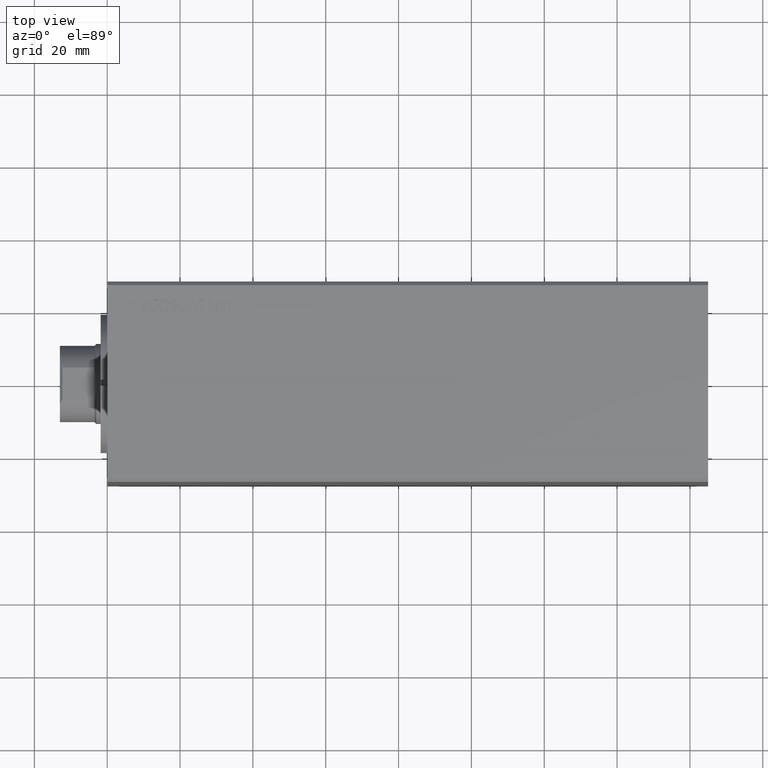
[diagram: clean part render]
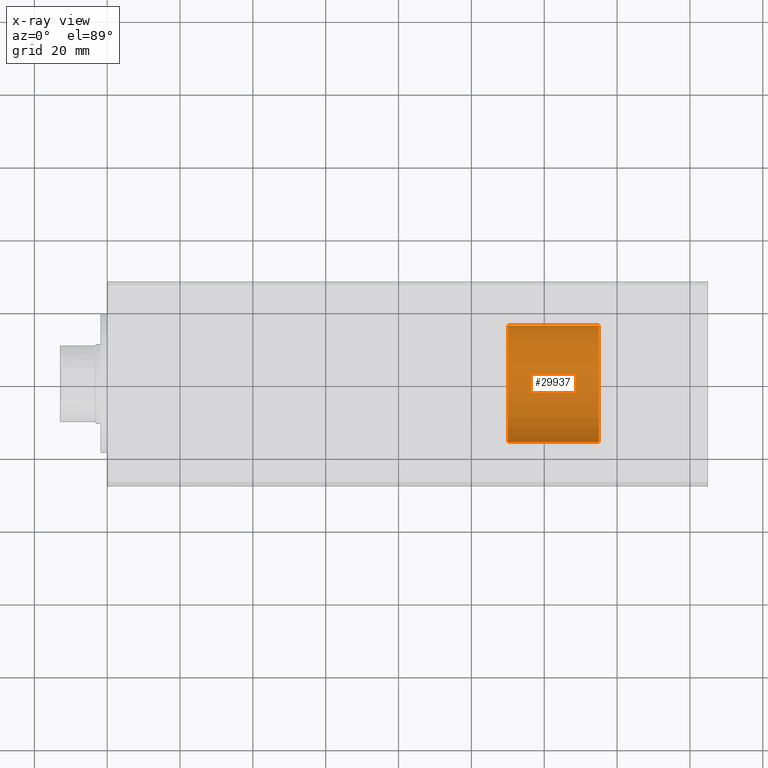
[diagram: x-ray — body ghosted, one internal face saturated and labeled with its STEP entity id]
A machine part, top view, then the same camera in x-ray: the body is ghosted and one INTERNAL B-rep face — a face not visible from any outside direction — is saturated and labeled: STEP entity #29937.
In plain terms, the highlighted cylindrical surface (partial cylindrical patch) has radius 16 mm, axis along (-1, 0, 0).
Its self-contained STEP definition (entity closure, byte-faithful):
#1081 = EDGE_CURVE ( 'NONE', #31718, #42353, #2463, .T. ) ;
#1941 = DIRECTION ( 'NONE',  ( 0.000000000000000000, -1.000000000000000000, 0.000000000000000000 ) ) ;
#1985 = EDGE_LOOP ( 'NONE', ( #39531, #18424, #27816, #24268 ) ) ;
#2463 = LINE ( 'NONE', #6469, #13023 ) ;
#2569 = VERTEX_POINT ( 'NONE', #31685 ) ;
#2777 = VECTOR ( 'NONE', #35470, 1000.000000000000000 ) ;
#3132 = DIRECTION ( 'NONE',  ( -0.000000000000000000, -1.817376075630682537E-16, 1.000000000000000000 ) ) ;
#4275 = EDGE_CURVE ( 'NONE', #42353, #2569, #4758, .T. ) ;
#4652 = CIRCLE ( 'NONE', #38190, 16.00000000000000000 ) ;
#4729 = CARTESIAN_POINT ( 'NONE',  ( 0.000000000000000000, -4.543440189076707229E-15, 25.00000000000000711 ) ) ;
#4758 = CIRCLE ( 'NONE', #10468, 15.99999999999999645 ) ;
#6174 = FACE_OUTER_BOUND ( 'NONE', #1985, .T. ) ;
#6469 = CARTESIAN_POINT ( 'NONE',  ( 0.000000000000000000, -16.00000000000002487, 148.0000000000000000 ) ) ;
#10468 = AXIS2_PLACEMENT_3D ( 'NONE', #4729, #35322, #31320 ) ;
#13023 = VECTOR ( 'NONE', #3132, 1000.000000000000000 ) ;
#14689 = LINE ( 'NONE', #21421, #2777 ) ;
#14921 = CARTESIAN_POINT ( 'NONE',  ( 1.959434878635765526E-15, 16.00000000000000000, 2.907801721009092059E-15 ) ) ;
#18259 = CARTESIAN_POINT ( 'NONE',  ( 0.000000000000000000, -16.00000000000000000, -2.907801721009092059E-15 ) ) ;
#18424 = ORIENTED_EDGE ( 'NONE', *, *, #18918, .T. ) ;
#18918 = EDGE_CURVE ( 'NONE', #20486, #2569, #14689, .T. ) ;
#19801 = CYLINDRICAL_SURFACE ( 'NONE', #31516, 15.99999999999999645 ) ;
#20486 = VERTEX_POINT ( 'NONE', #14921 ) ;
#21421 = CARTESIAN_POINT ( 'NONE',  ( 1.959434878635764737E-15, 15.99999999999996980, 148.0000000000000000 ) ) ;
#23005 = DIRECTION ( 'NONE',  ( -0.000000000000000000, -1.817376075630682537E-16, 1.000000000000000000 ) ) ;
#23496 = CARTESIAN_POINT ( 'NONE',  ( 0.000000000000000000, -16.00000000000000000, 25.00000000000000355 ) ) ;
#24268 = ORIENTED_EDGE ( 'NONE', *, *, #1081, .F. ) ;
#27816 = ORIENTED_EDGE ( 'NONE', *, *, #4275, .F. ) ;
#29937 = ADVANCED_FACE ( 'NONE', ( #6174 ), #19801, .T. ) ;
#31320 = DIRECTION ( 'NONE',  ( 0.000000000000000000, -1.000000000000000000, -2.168404344971009361E-16 ) ) ;
#31516 = AXIS2_PLACEMENT_3D ( 'NONE', #33419, #39231, #1941 ) ;
#31685 = CARTESIAN_POINT ( 'NONE',  ( 1.959434878635764737E-15, 15.99999999999999289, 25.00000000000001066 ) ) ;
#31718 = VERTEX_POINT ( 'NONE', #18259 ) ;
#33419 = CARTESIAN_POINT ( 'NONE',  ( 0.000000000000000000, -2.689716591933410036E-14, 148.0000000000000000 ) ) ;
#35322 = DIRECTION ( 'NONE',  ( -0.000000000000000000, -1.817376075630682537E-16, 1.000000000000000000 ) ) ;
#35470 = DIRECTION ( 'NONE',  ( -0.000000000000000000, -1.817376075630682537E-16, 1.000000000000000000 ) ) ;
#38190 = AXIS2_PLACEMENT_3D ( 'NONE', #43308, #23005, #44197 ) ;
#39231 = DIRECTION ( 'NONE',  ( -0.000000000000000000, -1.817376075630682537E-16, 1.000000000000000000 ) ) ;
#39531 = ORIENTED_EDGE ( 'NONE', *, *, #43344, .T. ) ;
#42353 = VERTEX_POINT ( 'NONE', #23496 ) ;
#43308 = CARTESIAN_POINT ( 'NONE',  ( 0.000000000000000000, 0.000000000000000000, 0.000000000000000000 ) ) ;
#43344 = EDGE_CURVE ( 'NONE', #31718, #20486, #4652, .T. ) ;
#44197 = DIRECTION ( 'NONE',  ( 0.000000000000000000, -1.000000000000000000, -1.817376075630682537E-16 ) ) ;